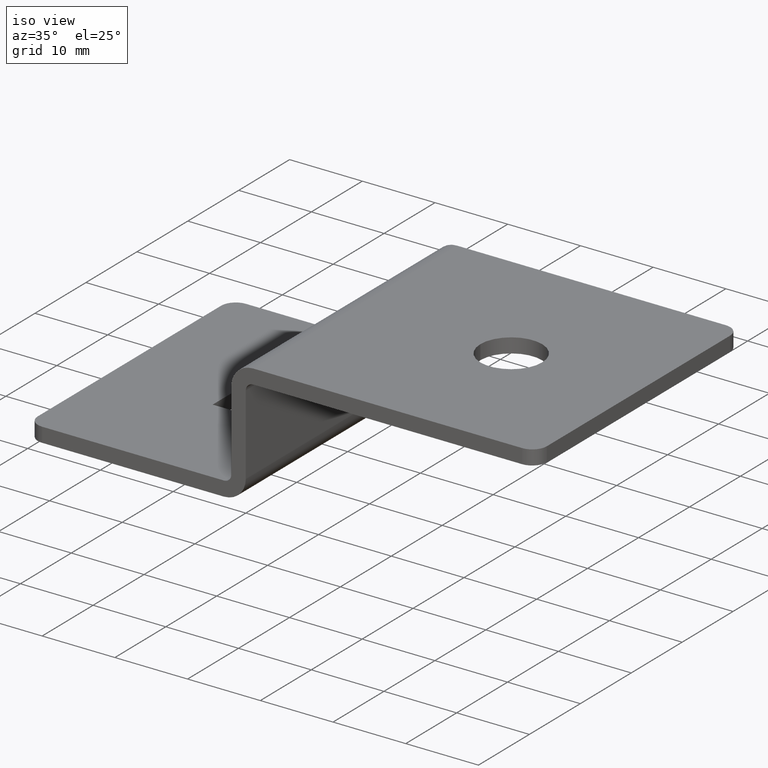
[diagram: clean part render]
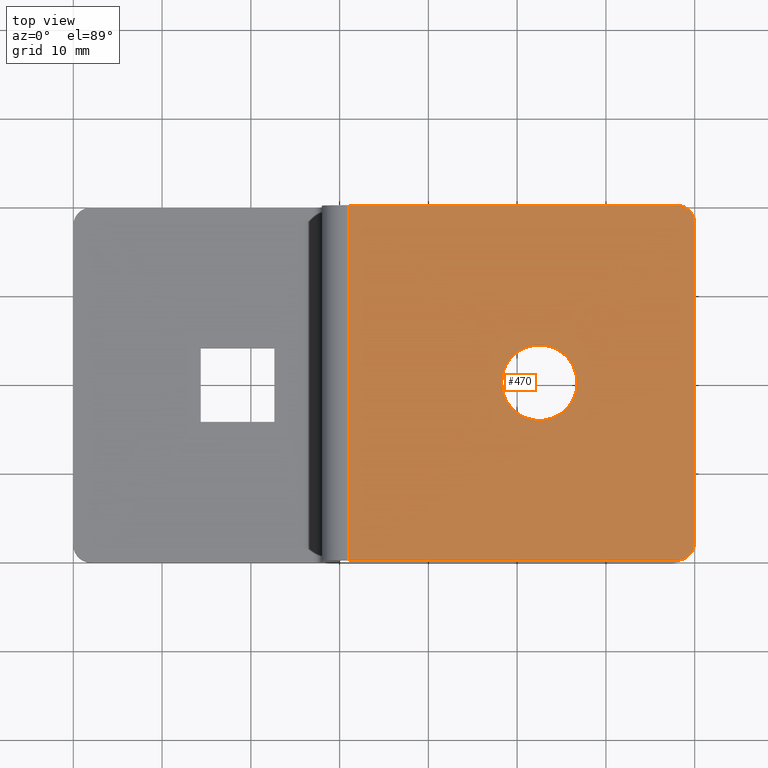
[diagram: tour spotlight — one face highlighted and labeled with its STEP entity id]
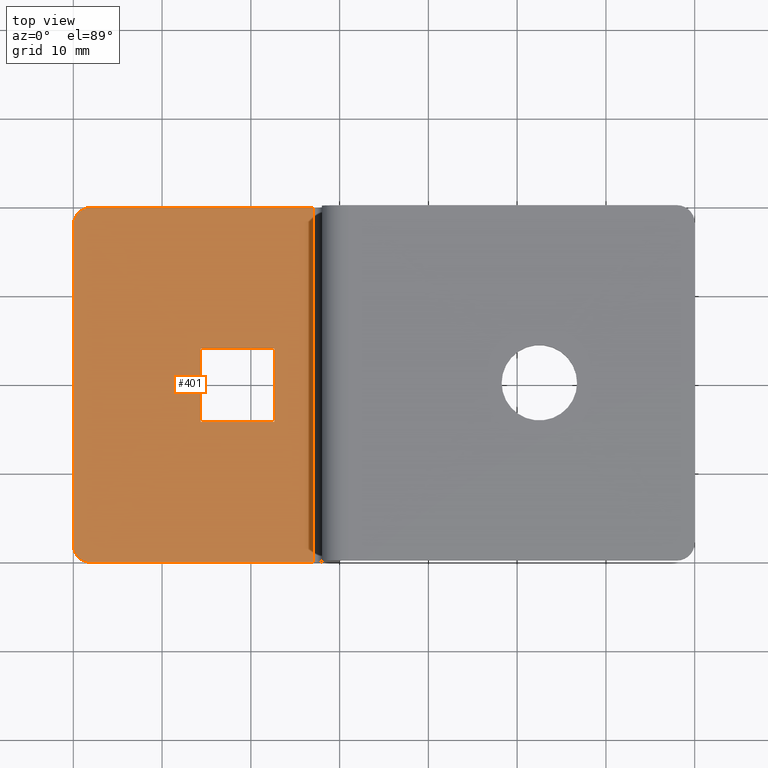
[diagram: tour spotlight — one face highlighted and labeled with its STEP entity id]
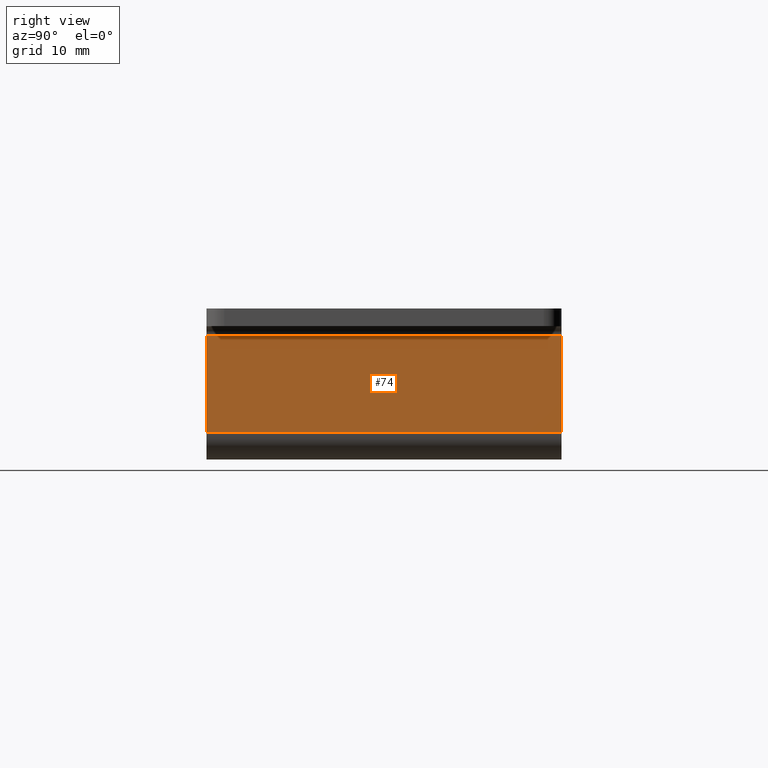
[diagram: tour spotlight — one face highlighted and labeled with its STEP entity id]
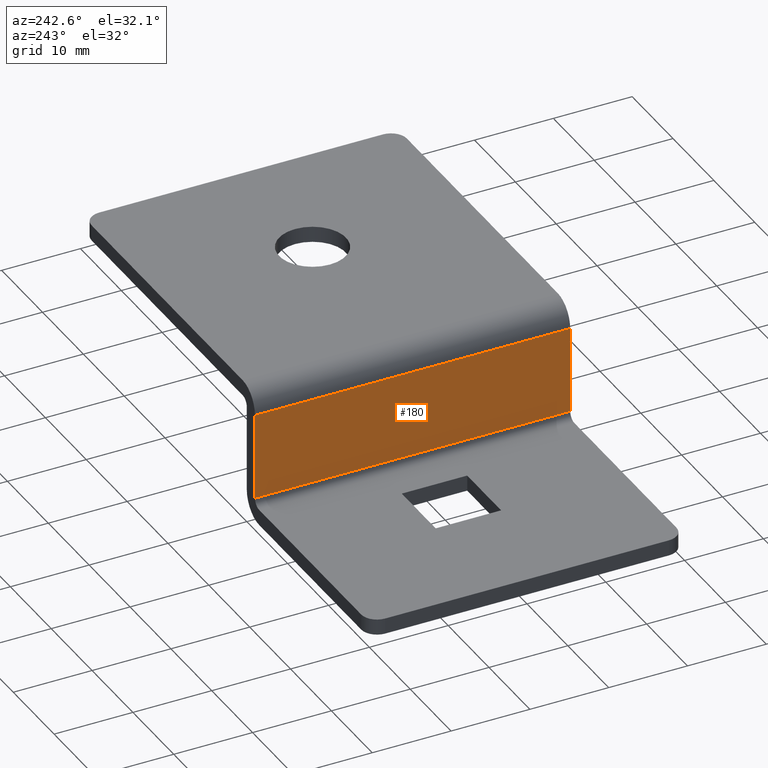
[diagram: tour spotlight — one face highlighted and labeled with its STEP entity id]
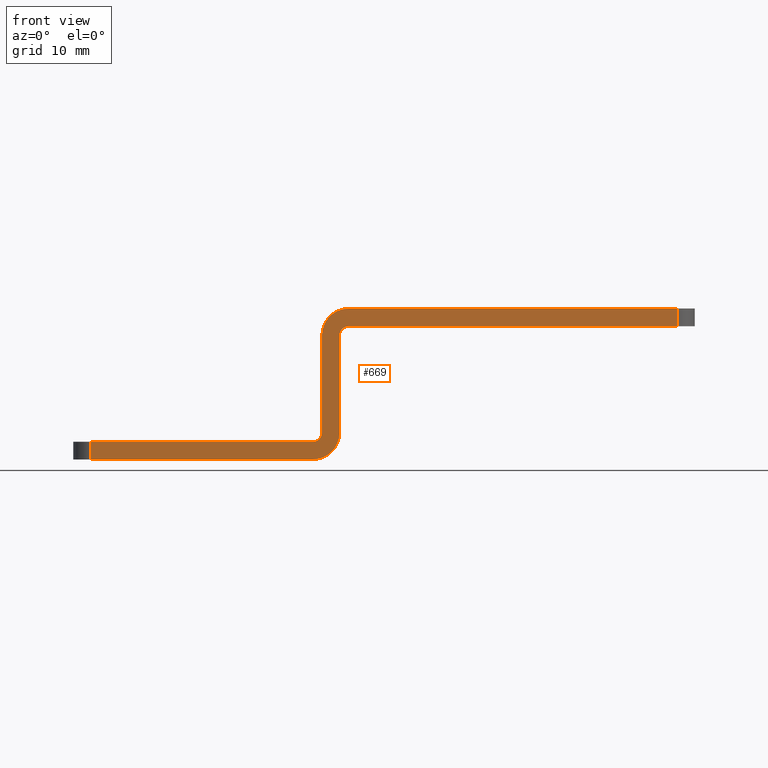
[diagram: tour spotlight — one face highlighted and labeled with its STEP entity id]
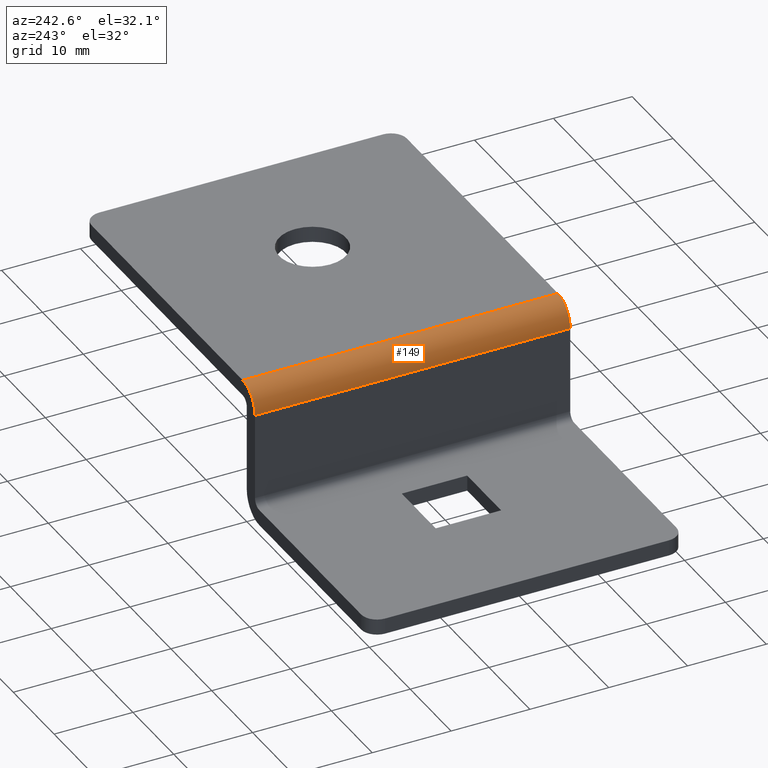
[diagram: tour spotlight — one face highlighted and labeled with its STEP entity id]
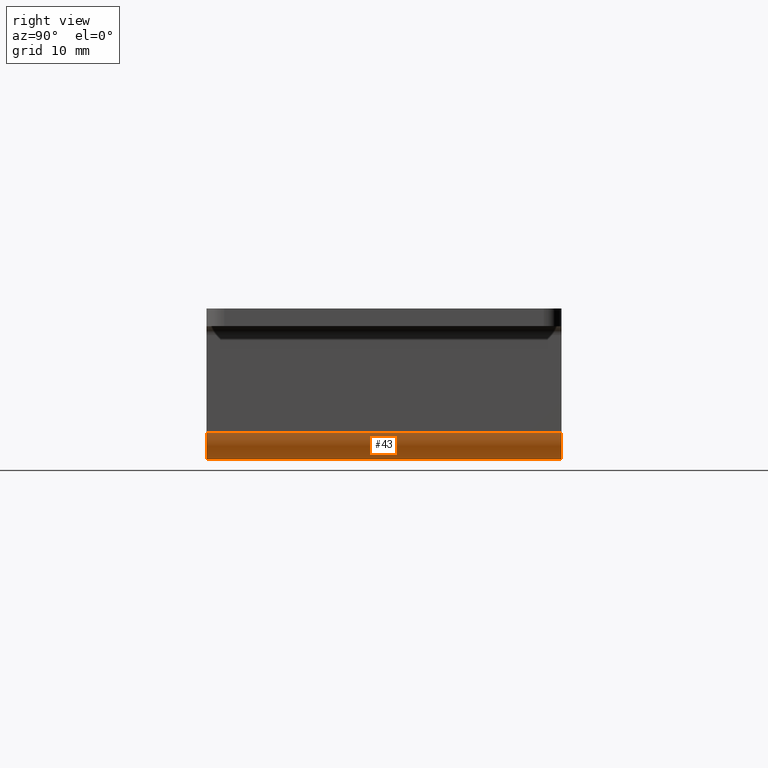
[diagram: tour spotlight — one face highlighted and labeled with its STEP entity id]
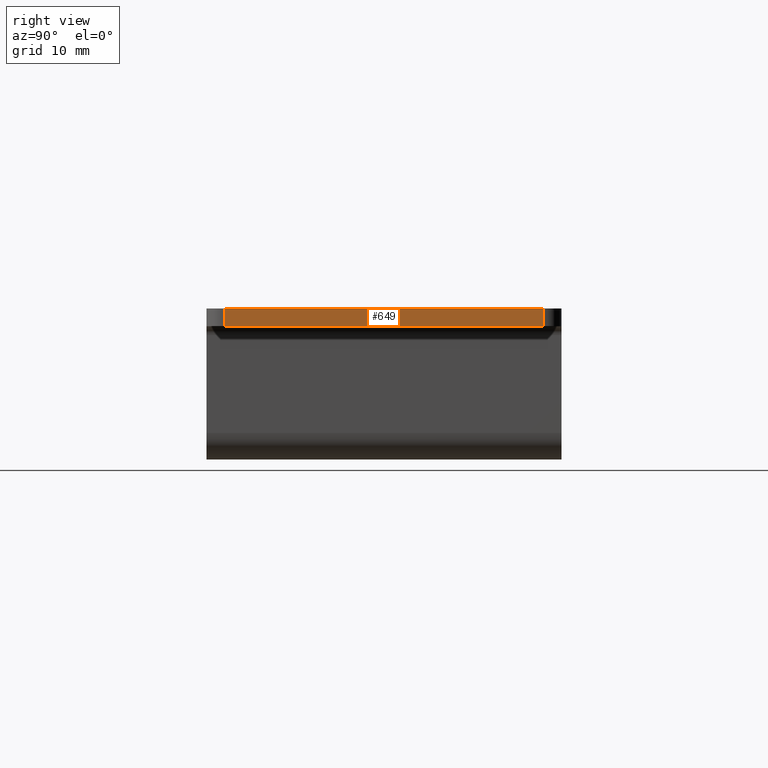
[diagram: tour spotlight — one face highlighted and labeled with its STEP entity id]
A machine part: a face-by-face anatomy tour. The part has 23 B-rep faces; the first image is the clean iso view, then the 8 largest visible faces are spotlighted one at a time (largest first), each with its STEP entity span.

Face 1 — top view, entity #470. In plain terms, the highlighted planar face has unit normal (0, 0, 1).
Definition (entity closure, byte-faithful):
#113=CARTESIAN_POINT('',(-38.999999999843510,19.999999999919964,-1.224647E-015));
#114=VERTEX_POINT('',#113);
#132=CARTESIAN_POINT('',(-38.999999999843510,-19.999999999919964,1.224647E-015));
#133=VERTEX_POINT('',#132);
#141=CARTESIAN_POINT('',(-38.999999999843510,19.999999999919964,-1.224647E-015));
#142=DIRECTION('',(0.0,-1.0,0.0));
#143=VECTOR('',#142,39.999999999839929);
#144=LINE('',#141,#143);
#145=EDGE_CURVE('',#114,#133,#144,.T.);
#402=CARTESIAN_POINT('',(0.0,19.999999999919964,-1.224647E-015));
#403=DIRECTION('',(0.0,0.0,1.0));
#404=DIRECTION('',(-1.0,0.0,0.0));
#405=AXIS2_PLACEMENT_3D('',#402,#403,#404);
#406=PLANE('',#405);
#407=CARTESIAN_POINT('',(-2.0,19.999999999919964,-1.224647E-015));
#408=VERTEX_POINT('',#407);
#409=CARTESIAN_POINT('',(-2.0,19.999999999919964,-1.224647E-015));
#410=DIRECTION('',(-1.0,0.0,0.0));
#411=VECTOR('',#410,36.999999999843510);
#412=LINE('',#409,#411);
#413=EDGE_CURVE('',#408,#114,#412,.T.);
#414=ORIENTED_EDGE('',*,*,#413,.T.);
#415=ORIENTED_EDGE('',*,*,#145,.T.);
#416=CARTESIAN_POINT('',(-2.0,-19.999999999919964,1.224647E-015));
#417=VERTEX_POINT('',#416);
#418=CARTESIAN_POINT('',(-2.0,-19.999999999919964,1.224647E-015));
#419=DIRECTION('',(-1.0,0.0,0.0));
#420=VECTOR('',#419,36.999999999843510);
#421=LINE('',#418,#420);
#422=EDGE_CURVE('',#417,#133,#421,.T.);
#423=ORIENTED_EDGE('',*,*,#422,.F.);
#424=CARTESIAN_POINT('',(0.0,-17.999999999919964,1.102182E-015));
#425=VERTEX_POINT('',#424);
#426=CARTESIAN_POINT('',(-2.0,-17.999999999919964,1.102182E-015));
#427=DIRECTION('',(0.0,-6.123234E-017,-1.0));
#428=DIRECTION('',(1.0,0.0,0.0));
#429=AXIS2_PLACEMENT_3D('',#426,#427,#428);
#430=CIRCLE('',#429,2.0);
#431=EDGE_CURVE('',#425,#417,#430,.T.);
#432=ORIENTED_EDGE('',*,*,#431,.F.);
#433=CARTESIAN_POINT('',(0.0,17.999999999919964,-1.102182E-015));
#434=VERTEX_POINT('',#433);
#435=CARTESIAN_POINT('',(0.0,17.999999999919964,-1.102182E-015));
#436=DIRECTION('',(0.0,-1.0,0.0));
#437=VECTOR('',#436,35.999999999839929);
#438=LINE('',#435,#437);
#439=EDGE_CURVE('',#434,#425,#438,.T.);
#440=ORIENTED_EDGE('',*,*,#439,.F.);
#441=CARTESIAN_POINT('',(-2.0,17.999999999919964,-1.102182E-015));
#442=DIRECTION('',(0.0,6.123234E-017,1.0));
#443=DIRECTION('',(1.0,0.0,0.0));
#444=AXIS2_PLACEMENT_3D('',#441,#442,#443);
#445=CIRCLE('',#444,2.0);
#446=EDGE_CURVE('',#434,#408,#445,.T.);
#447=ORIENTED_EDGE('',*,*,#446,.T.);
#448=EDGE_LOOP('',(#414,#415,#423,#432,#440,#447));
#449=FACE_OUTER_BOUND('',#448,.T.);
#450=CARTESIAN_POINT('',(-13.249999999946965,0.0,0.0));
#451=VERTEX_POINT('',#450);
#452=CARTESIAN_POINT('',(-21.749999999912973,0.0,0.0));
#453=VERTEX_POINT('',#452);
#454=CARTESIAN_POINT('',(-17.499999999929969,0.0,0.0));
#455=DIRECTION('',(0.0,6.123234E-017,1.0));
#456=DIRECTION('',(-1.0,0.0,0.0));
#457=AXIS2_PLACEMENT_3D('',#454,#455,#456);
#458=CIRCLE('',#457,4.249999999983004);
#459=EDGE_CURVE('',#451,#453,#458,.T.);
#460=ORIENTED_EDGE('',*,*,#459,.F.);
#461=CARTESIAN_POINT('',(-17.499999999929969,0.0,0.0));
#462=DIRECTION('',(0.0,6.123234E-017,1.0));
#463=DIRECTION('',(-1.0,0.0,0.0));
#464=AXIS2_PLACEMENT_3D('',#461,#462,#463);
#465=CIRCLE('',#464,4.249999999983004);
#466=EDGE_CURVE('',#453,#451,#465,.T.);
#467=ORIENTED_EDGE('',*,*,#466,.F.);
#468=EDGE_LOOP('',(#460,#467));
#469=FACE_BOUND('',#468,.T.);
#470=ADVANCED_FACE('',(#449,#469),#406,.T.);

Face 2 — top view, entity #401. In plain terms, the highlighted planar face has unit normal (0, 0, 1).
Definition (entity closure, byte-faithful):
#186=CARTESIAN_POINT('',(-42.999999999827878,19.999999999919964,-14.999999999939890));
#187=VERTEX_POINT('',#186);
#195=CARTESIAN_POINT('',(-42.999999999827878,-19.999999999919964,-14.999999999939886));
#196=VERTEX_POINT('',#195);
#197=CARTESIAN_POINT('',(-42.999999999827878,19.999999999919964,-14.999999999939890));
#198=DIRECTION('',(0.0,-1.0,0.0));
#199=VECTOR('',#198,39.999999999839929);
#200=LINE('',#197,#199);
#201=EDGE_CURVE('',#187,#196,#200,.T.);
#302=CARTESIAN_POINT('',(-69.999999999720060,17.999999999919964,-14.999999999939890));
#303=VERTEX_POINT('',#302);
#304=CARTESIAN_POINT('',(-67.999999999720060,19.999999999919964,-14.999999999939890));
#305=VERTEX_POINT('',#304);
#306=CARTESIAN_POINT('',(-67.999999999720060,17.999999999919964,-14.999999999939890));
#307=DIRECTION('',(0.0,-6.123234E-017,-1.0));
#308=DIRECTION('',(-1.0,0.0,0.0));
#309=AXIS2_PLACEMENT_3D('',#306,#307,#308);
#310=CIRCLE('',#309,2.0);
#311=EDGE_CURVE('',#303,#305,#310,.T.);
#329=CARTESIAN_POINT('',(-42.999999999827878,19.999999999919964,-14.999999999939890));
#330=DIRECTION('',(0.0,0.0,1.0));
#331=DIRECTION('',(-1.0,0.0,0.0));
#332=AXIS2_PLACEMENT_3D('',#329,#330,#331);
#333=PLANE('',#332);
#334=CARTESIAN_POINT('',(-42.999999999827878,19.999999999919964,-14.999999999939890));
#335=DIRECTION('',(-1.0,0.0,0.0));
#336=VECTOR('',#335,24.999999999892182);
#337=LINE('',#334,#336);
#338=EDGE_CURVE('',#187,#305,#337,.T.);
#339=ORIENTED_EDGE('',*,*,#338,.T.);
#340=ORIENTED_EDGE('',*,*,#311,.F.);
#341=CARTESIAN_POINT('',(-69.999999999720060,-17.999999999919964,-14.999999999939886));
#342=VERTEX_POINT('',#341);
#343=CARTESIAN_POINT('',(-69.999999999720060,17.999999999919964,-14.999999999939890));
#344=DIRECTION('',(0.0,-1.0,0.0));
#345=VECTOR('',#344,35.999999999839929);
#346=LINE('',#343,#345);
#347=EDGE_CURVE('',#303,#342,#346,.T.);
#348=ORIENTED_EDGE('',*,*,#347,.T.);
#349=CARTESIAN_POINT('',(-67.999999999720060,-19.999999999919964,-14.999999999939886));
#350=VERTEX_POINT('',#349);
#351=CARTESIAN_POINT('',(-67.999999999720060,-17.999999999919964,-14.999999999939886));
#352=DIRECTION('',(0.0,6.123234E-017,1.0));
#353=DIRECTION('',(-1.0,0.0,0.0));
#354=AXIS2_PLACEMENT_3D('',#351,#352,#353);
#355=CIRCLE('',#354,2.0);
#356=EDGE_CURVE('',#342,#350,#355,.T.);
#357=ORIENTED_EDGE('',*,*,#356,.T.);
#358=CARTESIAN_POINT('',(-42.999999999827878,-19.999999999919964,-14.999999999939886));
#359=DIRECTION('',(-1.0,0.0,0.0));
#360=VECTOR('',#359,24.999999999892182);
#361=LINE('',#358,#360);
#362=EDGE_CURVE('',#196,#350,#361,.T.);
#363=ORIENTED_EDGE('',*,*,#362,.F.);
#364=ORIENTED_EDGE('',*,*,#201,.F.);
#365=EDGE_LOOP('',(#339,#340,#348,#357,#363,#364));
#366=FACE_OUTER_BOUND('',#365,.T.);
#367=CARTESIAN_POINT('',(-55.649999999777322,4.146153846137167,-14.999999999939888));
#368=VERTEX_POINT('',#367);
#369=CARTESIAN_POINT('',(-47.349999999810507,4.146153846137167,-14.999999999939888));
#370=VERTEX_POINT('',#369);
#371=CARTESIAN_POINT('',(-55.649999999777322,4.146153846137167,-14.999999999939888));
#372=DIRECTION('',(1.0,0.0,0.0));
#373=VECTOR('',#372,8.299999999966815);
#374=LINE('',#371,#373);
#375=EDGE_CURVE('',#368,#370,#374,.T.);
#376=ORIENTED_EDGE('',*,*,#375,.T.);
#377=CARTESIAN_POINT('',(-47.349999999810507,-4.153846153829364,-14.999999999939888));
#378=VERTEX_POINT('',#377);
#379=CARTESIAN_POINT('',(-47.349999999810507,-4.153846153829364,-14.999999999939888));
#380=DIRECTION('',(0.0,1.0,0.0));
#381=VECTOR('',#380,8.299999999966531);
#382=LINE('',#379,#381);
#383=EDGE_CURVE('',#378,#370,#382,.T.);
#384=ORIENTED_EDGE('',*,*,#383,.F.);
#385=CARTESIAN_POINT('',(-55.649999999777322,-4.153846153829364,-14.999999999939888));
#386=VERTEX_POINT('',#385);
#387=CARTESIAN_POINT('',(-55.649999999777322,-4.153846153829364,-14.999999999939888));
#388=DIRECTION('',(1.0,0.0,0.0));
#389=VECTOR('',#388,8.299999999966815);
#390=LINE('',#387,#389);
#391=EDGE_CURVE('',#386,#378,#390,.T.);
#392=ORIENTED_EDGE('',*,*,#391,.F.);
#393=CARTESIAN_POINT('',(-55.649999999777322,4.146153846137167,-14.999999999939888));
#394=DIRECTION('',(0.0,-1.0,0.0));
#395=VECTOR('',#394,8.299999999966531);
#396=LINE('',#393,#395);
#397=EDGE_CURVE('',#368,#386,#396,.T.);
#398=ORIENTED_EDGE('',*,*,#397,.F.);
#399=EDGE_LOOP('',(#376,#384,#392,#398));
#400=FACE_BOUND('',#399,.T.);
#401=ADVANCED_FACE('',(#366,#400),#333,.T.);

Face 3 — right view, entity #74. In plain terms, the highlighted planar face has unit normal (1, 0, 0).
Definition (entity closure, byte-faithful):
#9=CARTESIAN_POINT('',(-39.999999999839872,19.999999999919964,-13.999999999951855));
#10=VERTEX_POINT('',#9);
#18=CARTESIAN_POINT('',(-39.999999999839872,-19.999999999919964,-13.999999999951852));
#19=VERTEX_POINT('',#18);
#20=CARTESIAN_POINT('',(-39.999999999839872,19.999999999919964,-13.999999999951855));
#21=DIRECTION('',(0.0,-1.0,0.0));
#22=VECTOR('',#21,39.999999999839929);
#23=LINE('',#20,#22);
#24=EDGE_CURVE('',#10,#19,#23,.T.);
#44=CARTESIAN_POINT('',(-39.999999999839872,19.999999999919964,-13.999999999951855));
#45=DIRECTION('',(1.0,0.0,0.0));
#46=DIRECTION('',(0.0,0.0,1.0));
#47=AXIS2_PLACEMENT_3D('',#44,#45,#46);
#48=PLANE('',#47);
#49=CARTESIAN_POINT('',(-39.999999999839872,19.999999999919964,-2.999999999996363));
#50=VERTEX_POINT('',#49);
#51=CARTESIAN_POINT('',(-39.999999999839872,19.999999999919964,-13.999999999951855));
#52=DIRECTION('',(0.0,0.0,1.0));
#53=VECTOR('',#52,10.999999999955477);
#54=LINE('',#51,#53);
#55=EDGE_CURVE('',#10,#50,#54,.T.);
#56=ORIENTED_EDGE('',*,*,#55,.T.);
#57=CARTESIAN_POINT('',(-39.999999999839872,-19.999999999919964,-2.999999999996361));
#58=VERTEX_POINT('',#57);
#59=CARTESIAN_POINT('',(-39.999999999839872,19.999999999919964,-2.999999999996363));
#60=DIRECTION('',(0.0,-1.0,0.0));
#61=VECTOR('',#60,39.999999999839929);
#62=LINE('',#59,#61);
#63=EDGE_CURVE('',#50,#58,#62,.T.);
#64=ORIENTED_EDGE('',*,*,#63,.T.);
#65=CARTESIAN_POINT('',(-39.999999999839872,-19.999999999919964,-13.999999999951852));
#66=DIRECTION('',(0.0,0.0,1.0));
#67=VECTOR('',#66,10.999999999955477);
#68=LINE('',#65,#67);
#69=EDGE_CURVE('',#19,#58,#68,.T.);
#70=ORIENTED_EDGE('',*,*,#69,.F.);
#71=ORIENTED_EDGE('',*,*,#24,.F.);
#72=EDGE_LOOP('',(#56,#64,#70,#71));
#73=FACE_OUTER_BOUND('',#72,.T.);
#74=ADVANCED_FACE('',(#73),#48,.T.);

Face 4 — auxiliary view, entity #180. In plain terms, the highlighted planar face has unit normal (-1, 0, 0).
Definition (entity closure, byte-faithful):
#115=CARTESIAN_POINT('',(-41.999999999839872,19.999999999919964,-2.999999999996378));
#116=VERTEX_POINT('',#115);
#124=CARTESIAN_POINT('',(-41.999999999839872,-19.999999999919964,-2.999999999996375));
#125=VERTEX_POINT('',#124);
#126=CARTESIAN_POINT('',(-41.999999999839872,19.999999999919964,-2.999999999996378));
#127=DIRECTION('',(0.0,-1.0,0.0));
#128=VECTOR('',#127,39.999999999839929);
#129=LINE('',#126,#128);
#130=EDGE_CURVE('',#116,#125,#129,.T.);
#150=CARTESIAN_POINT('',(-41.999999999839872,19.999999999919964,-2.999999999996378));
#151=DIRECTION('',(-1.0,0.0,0.0));
#152=DIRECTION('',(0.0,0.0,-1.0));
#153=AXIS2_PLACEMENT_3D('',#150,#151,#152);
#154=PLANE('',#153);
#155=CARTESIAN_POINT('',(-41.999999999839872,19.999999999919964,-13.999999999951855));
#156=VERTEX_POINT('',#155);
#157=CARTESIAN_POINT('',(-41.999999999839872,19.999999999919964,-2.999999999996378));
#158=DIRECTION('',(0.0,0.0,-1.0));
#159=VECTOR('',#158,10.999999999955477);
#160=LINE('',#157,#159);
#161=EDGE_CURVE('',#116,#156,#160,.T.);
#162=ORIENTED_EDGE('',*,*,#161,.T.);
#163=CARTESIAN_POINT('',(-41.999999999839872,-19.999999999919964,-13.999999999951852));
#164=VERTEX_POINT('',#163);
#165=CARTESIAN_POINT('',(-41.999999999839872,19.999999999919964,-13.999999999951855));
#166=DIRECTION('',(0.0,-1.0,0.0));
#167=VECTOR('',#166,39.999999999839929);
#168=LINE('',#165,#167);
#169=EDGE_CURVE('',#156,#164,#168,.T.);
#170=ORIENTED_EDGE('',*,*,#169,.T.);
#171=CARTESIAN_POINT('',(-41.999999999839872,-19.999999999919964,-2.999999999996375));
#172=DIRECTION('',(0.0,0.0,-1.0));
#173=VECTOR('',#172,10.999999999955477);
#174=LINE('',#171,#173);
#175=EDGE_CURVE('',#125,#164,#174,.T.);
#176=ORIENTED_EDGE('',*,*,#175,.F.);
#177=ORIENTED_EDGE('',*,*,#130,.F.);
#178=EDGE_LOOP('',(#162,#170,#176,#177));
#179=FACE_OUTER_BOUND('',#178,.T.);
#180=ADVANCED_FACE('',(#179),#154,.T.);

Face 5 — front view, entity #669. In plain terms, the highlighted planar face has unit normal (0, -1, 0).
Definition (entity closure, byte-faithful):
#18=CARTESIAN_POINT('',(-39.999999999839872,-19.999999999919964,-13.999999999951852));
#19=VERTEX_POINT('',#18);
#26=CARTESIAN_POINT('',(-42.999999999827907,-19.999999999919964,-16.999999999939888));
#27=VERTEX_POINT('',#26);
#28=CARTESIAN_POINT('',(-42.999999999827907,-19.999999999919964,-13.999999999951852));
#29=DIRECTION('',(0.0,-1.0,6.123234E-017));
#30=DIRECTION('',(0.0,-6.123234E-017,-1.0));
#31=AXIS2_PLACEMENT_3D('',#28,#29,#30);
#32=CIRCLE('',#31,2.999999999988035);
#33=EDGE_CURVE('',#27,#19,#32,.T.);
#57=CARTESIAN_POINT('',(-39.999999999839872,-19.999999999919964,-2.999999999996361));
#58=VERTEX_POINT('',#57);
#65=CARTESIAN_POINT('',(-39.999999999839872,-19.999999999919964,-13.999999999951852));
#66=DIRECTION('',(0.0,0.0,1.0));
#67=VECTOR('',#66,10.999999999955477);
#68=LINE('',#65,#67);
#69=EDGE_CURVE('',#19,#58,#68,.T.);
#89=CARTESIAN_POINT('',(-38.999999999843510,-19.999999999919964,-1.999999999999999));
#90=VERTEX_POINT('',#89);
#97=CARTESIAN_POINT('',(-38.999999999843510,-19.999999999919964,-2.999999999996361));
#98=DIRECTION('',(0.0,1.0,-6.123234E-017));
#99=DIRECTION('',(1.0,0.0,0.0));
#100=AXIS2_PLACEMENT_3D('',#97,#98,#99);
#101=CIRCLE('',#100,0.999999999996366);
#102=EDGE_CURVE('',#58,#90,#101,.T.);
#124=CARTESIAN_POINT('',(-41.999999999839872,-19.999999999919964,-2.999999999996375));
#125=VERTEX_POINT('',#124);
#132=CARTESIAN_POINT('',(-38.999999999843510,-19.999999999919964,1.224647E-015));
#133=VERTEX_POINT('',#132);
#134=CARTESIAN_POINT('',(-38.999999999843510,-19.999999999919964,-2.999999999996361));
#135=DIRECTION('',(0.0,-1.0,6.123234E-017));
#136=DIRECTION('',(1.0,0.0,0.0));
#137=AXIS2_PLACEMENT_3D('',#134,#135,#136);
#138=CIRCLE('',#137,2.999999999996366);
#139=EDGE_CURVE('',#133,#125,#138,.T.);
#163=CARTESIAN_POINT('',(-41.999999999839872,-19.999999999919964,-13.999999999951852));
#164=VERTEX_POINT('',#163);
#171=CARTESIAN_POINT('',(-41.999999999839872,-19.999999999919964,-2.999999999996375));
#172=DIRECTION('',(0.0,0.0,-1.0));
#173=VECTOR('',#172,10.999999999955477);
#174=LINE('',#171,#173);
#175=EDGE_CURVE('',#125,#164,#174,.T.);
#195=CARTESIAN_POINT('',(-42.999999999827878,-19.999999999919964,-14.999999999939886));
#196=VERTEX_POINT('',#195);
#203=CARTESIAN_POINT('',(-42.999999999827907,-19.999999999919964,-13.999999999951852));
#204=DIRECTION('',(0.0,1.0,-6.123234E-017));
#205=DIRECTION('',(0.0,-6.123234E-017,-1.0));
#206=AXIS2_PLACEMENT_3D('',#203,#204,#205);
#207=CIRCLE('',#206,0.999999999988034);
#208=EDGE_CURVE('',#164,#196,#207,.T.);
#228=CARTESIAN_POINT('',(-67.999999999720060,-19.999999999919964,-16.999999999939888));
#229=VERTEX_POINT('',#228);
#230=CARTESIAN_POINT('',(-67.999999999720060,-19.999999999919964,-16.999999999939888));
#231=DIRECTION('',(1.0,0.0,0.0));
#232=VECTOR('',#231,24.999999999892182);
#233=LINE('',#230,#232);
#234=EDGE_CURVE('',#229,#27,#233,.T.);
#349=CARTESIAN_POINT('',(-67.999999999720060,-19.999999999919964,-14.999999999939886));
#350=VERTEX_POINT('',#349);
#358=CARTESIAN_POINT('',(-42.999999999827878,-19.999999999919964,-14.999999999939886));
#359=DIRECTION('',(-1.0,0.0,0.0));
#360=VECTOR('',#359,24.999999999892182);
#361=LINE('',#358,#360);
#362=EDGE_CURVE('',#196,#350,#361,.T.);
#416=CARTESIAN_POINT('',(-2.0,-19.999999999919964,1.224647E-015));
#417=VERTEX_POINT('',#416);
#418=CARTESIAN_POINT('',(-2.0,-19.999999999919964,1.224647E-015));
#419=DIRECTION('',(-1.0,0.0,0.0));
#420=VECTOR('',#419,36.999999999843510);
#421=LINE('',#418,#420);
#422=EDGE_CURVE('',#417,#133,#421,.T.);
#523=CARTESIAN_POINT('',(-2.0,-19.999999999919964,-1.999999999999999));
#524=VERTEX_POINT('',#523);
#532=CARTESIAN_POINT('',(-38.999999999843510,-19.999999999919964,-1.999999999999999));
#533=DIRECTION('',(1.0,0.0,0.0));
#534=VECTOR('',#533,36.999999999843510);
#535=LINE('',#532,#534);
#536=EDGE_CURVE('',#90,#524,#535,.T.);
#574=CARTESIAN_POINT('',(-2.0,-19.999999999919964,-1.999999999999999));
#575=DIRECTION('',(0.0,0.0,1.0));
#576=VECTOR('',#575,2.0);
#577=LINE('',#574,#576);
#578=EDGE_CURVE('',#524,#417,#577,.T.);
#596=CARTESIAN_POINT('',(-67.999999999720060,-19.999999999919964,-14.999999999939886));
#597=DIRECTION('',(0.0,0.0,-1.0));
#598=VECTOR('',#597,2.000000000000002);
#599=LINE('',#596,#598);
#600=EDGE_CURVE('',#350,#229,#599,.T.);
#650=CARTESIAN_POINT('',(-77.000004724124679,-19.999999999919964,1.700004724583808));
#651=DIRECTION('',(0.0,-1.0,0.0));
#652=DIRECTION('',(0.0,0.0,-1.0));
#653=AXIS2_PLACEMENT_3D('',#650,#651,#652);
#654=PLANE('',#653);
#655=ORIENTED_EDGE('',*,*,#33,.T.);
#656=ORIENTED_EDGE('',*,*,#69,.T.);
#657=ORIENTED_EDGE('',*,*,#102,.T.);
#658=ORIENTED_EDGE('',*,*,#536,.T.);
#659=ORIENTED_EDGE('',*,*,#578,.T.);
#660=ORIENTED_EDGE('',*,*,#422,.T.);
#661=ORIENTED_EDGE('',*,*,#139,.T.);
#662=ORIENTED_EDGE('',*,*,#175,.T.);
#663=ORIENTED_EDGE('',*,*,#208,.T.);
#664=ORIENTED_EDGE('',*,*,#362,.T.);
#665=ORIENTED_EDGE('',*,*,#600,.T.);
#666=ORIENTED_EDGE('',*,*,#234,.T.);
#667=EDGE_LOOP('',(#655,#656,#657,#658,#659,#660,#661,#662,#663,#664,#665,#666));
#668=FACE_OUTER_BOUND('',#667,.T.);
#669=ADVANCED_FACE('',(#668),#654,.T.);

Face 6 — auxiliary view, entity #149. In plain terms, the highlighted cylindrical surface (edge-blend (fillet) strip) has radius 3 mm, axis along (0, -1, 0).
Definition (entity closure, byte-faithful):
#108=CARTESIAN_POINT('',(-38.999999999843510,19.999999999919964,-2.999999999996363));
#109=DIRECTION('',(0.0,-1.0,6.123234E-017));
#110=DIRECTION('',(1.0,0.0,0.0));
#111=AXIS2_PLACEMENT_3D('',#108,#109,#110);
#112=CYLINDRICAL_SURFACE('',#111,2.999999999996366);
#113=CARTESIAN_POINT('',(-38.999999999843510,19.999999999919964,-1.224647E-015));
#114=VERTEX_POINT('',#113);
#115=CARTESIAN_POINT('',(-41.999999999839872,19.999999999919964,-2.999999999996378));
#116=VERTEX_POINT('',#115);
#117=CARTESIAN_POINT('',(-38.999999999843510,19.999999999919964,-2.999999999996363));
#118=DIRECTION('',(0.0,-1.0,6.123234E-017));
#119=DIRECTION('',(1.0,0.0,0.0));
#120=AXIS2_PLACEMENT_3D('',#117,#118,#119);
#121=CIRCLE('',#120,2.999999999996366);
#122=EDGE_CURVE('',#114,#116,#121,.T.);
#123=ORIENTED_EDGE('',*,*,#122,.T.);
#124=CARTESIAN_POINT('',(-41.999999999839872,-19.999999999919964,-2.999999999996375));
#125=VERTEX_POINT('',#124);
#126=CARTESIAN_POINT('',(-41.999999999839872,19.999999999919964,-2.999999999996378));
#127=DIRECTION('',(0.0,-1.0,0.0));
#128=VECTOR('',#127,39.999999999839929);
#129=LINE('',#126,#128);
#130=EDGE_CURVE('',#116,#125,#129,.T.);
#131=ORIENTED_EDGE('',*,*,#130,.T.);
#132=CARTESIAN_POINT('',(-38.999999999843510,-19.999999999919964,1.224647E-015));
#133=VERTEX_POINT('',#132);
#134=CARTESIAN_POINT('',(-38.999999999843510,-19.999999999919964,-2.999999999996361));
#135=DIRECTION('',(0.0,-1.0,6.123234E-017));
#136=DIRECTION('',(1.0,0.0,0.0));
#137=AXIS2_PLACEMENT_3D('',#134,#135,#136);
#138=CIRCLE('',#137,2.999999999996366);
#139=EDGE_CURVE('',#133,#125,#138,.T.);
#140=ORIENTED_EDGE('',*,*,#139,.F.);
#141=CARTESIAN_POINT('',(-38.999999999843510,19.999999999919964,-1.224647E-015));
#142=DIRECTION('',(0.0,-1.0,0.0));
#143=VECTOR('',#142,39.999999999839929);
#144=LINE('',#141,#143);
#145=EDGE_CURVE('',#114,#133,#144,.T.);
#146=ORIENTED_EDGE('',*,*,#145,.F.);
#147=EDGE_LOOP('',(#123,#131,#140,#146));
#148=FACE_OUTER_BOUND('',#147,.T.);
#149=ADVANCED_FACE('',(#148),#112,.T.);

Face 7 — right view, entity #43. In plain terms, the highlighted cylindrical surface (edge-blend (fillet) strip) has radius 3 mm, axis along (0, -1, 0).
Definition (entity closure, byte-faithful):
#2=CARTESIAN_POINT('',(-42.999999999827907,19.999999999919964,-13.999999999951855));
#3=DIRECTION('',(0.0,-1.0,6.123234E-017));
#4=DIRECTION('',(0.0,-6.123234E-017,-1.0));
#5=AXIS2_PLACEMENT_3D('',#2,#3,#4);
#6=CYLINDRICAL_SURFACE('',#5,2.999999999988035);
#7=CARTESIAN_POINT('',(-42.999999999827907,19.999999999919964,-16.999999999939888));
#8=VERTEX_POINT('',#7);
#9=CARTESIAN_POINT('',(-39.999999999839872,19.999999999919964,-13.999999999951855));
#10=VERTEX_POINT('',#9);
#11=CARTESIAN_POINT('',(-42.999999999827907,19.999999999919964,-13.999999999951855));
#12=DIRECTION('',(0.0,-1.0,6.123234E-017));
#13=DIRECTION('',(0.0,-6.123234E-017,-1.0));
#14=AXIS2_PLACEMENT_3D('',#11,#12,#13);
#15=CIRCLE('',#14,2.999999999988035);
#16=EDGE_CURVE('',#8,#10,#15,.T.);
#17=ORIENTED_EDGE('',*,*,#16,.T.);
#18=CARTESIAN_POINT('',(-39.999999999839872,-19.999999999919964,-13.999999999951852));
#19=VERTEX_POINT('',#18);
#20=CARTESIAN_POINT('',(-39.999999999839872,19.999999999919964,-13.999999999951855));
#21=DIRECTION('',(0.0,-1.0,0.0));
#22=VECTOR('',#21,39.999999999839929);
#23=LINE('',#20,#22);
#24=EDGE_CURVE('',#10,#19,#23,.T.);
#25=ORIENTED_EDGE('',*,*,#24,.T.);
#26=CARTESIAN_POINT('',(-42.999999999827907,-19.999999999919964,-16.999999999939888));
#27=VERTEX_POINT('',#26);
#28=CARTESIAN_POINT('',(-42.999999999827907,-19.999999999919964,-13.999999999951852));
#29=DIRECTION('',(0.0,-1.0,6.123234E-017));
#30=DIRECTION('',(0.0,-6.123234E-017,-1.0));
#31=AXIS2_PLACEMENT_3D('',#28,#29,#30);
#32=CIRCLE('',#31,2.999999999988035);
#33=EDGE_CURVE('',#27,#19,#32,.T.);
#34=ORIENTED_EDGE('',*,*,#33,.F.);
#35=CARTESIAN_POINT('',(-42.999999999827907,19.999999999919964,-16.999999999939888));
#36=DIRECTION('',(0.0,-1.0,0.0));
#37=VECTOR('',#36,39.999999999839929);
#38=LINE('',#35,#37);
#39=EDGE_CURVE('',#8,#27,#38,.T.);
#40=ORIENTED_EDGE('',*,*,#39,.F.);
#41=EDGE_LOOP('',(#17,#25,#34,#40));
#42=FACE_OUTER_BOUND('',#41,.T.);
#43=ADVANCED_FACE('',(#42),#6,.T.);

Face 8 — right view, entity #649. In plain terms, the highlighted planar face has unit normal (1, 0, 0).
Definition (entity closure, byte-faithful):
#424=CARTESIAN_POINT('',(0.0,-17.999999999919964,1.102182E-015));
#425=VERTEX_POINT('',#424);
#433=CARTESIAN_POINT('',(0.0,17.999999999919964,-1.102182E-015));
#434=VERTEX_POINT('',#433);
#435=CARTESIAN_POINT('',(0.0,17.999999999919964,-1.102182E-015));
#436=DIRECTION('',(0.0,-1.0,0.0));
#437=VECTOR('',#436,35.999999999839929);
#438=LINE('',#435,#437);
#439=EDGE_CURVE('',#434,#425,#438,.T.);
#476=CARTESIAN_POINT('',(0.0,17.999999999919964,-2.000000000000001));
#477=VERTEX_POINT('',#476);
#494=CARTESIAN_POINT('',(0.0,17.999999999919964,-2.000000000000001));
#495=DIRECTION('',(0.0,0.0,1.0));
#496=VECTOR('',#495,2.0);
#497=LINE('',#494,#496);
#498=EDGE_CURVE('',#477,#434,#497,.T.);
#515=CARTESIAN_POINT('',(0.0,-17.999999999919964,-1.999999999999999));
#516=VERTEX_POINT('',#515);
#517=CARTESIAN_POINT('',(0.0,17.999999999919964,-2.000000000000001));
#518=DIRECTION('',(0.0,-1.0,0.0));
#519=VECTOR('',#518,35.999999999839929);
#520=LINE('',#517,#519);
#521=EDGE_CURVE('',#477,#516,#520,.T.);
#567=CARTESIAN_POINT('',(0.0,-17.999999999919964,-1.999999999999999));
#568=DIRECTION('',(0.0,0.0,1.0));
#569=VECTOR('',#568,2.0);
#570=LINE('',#567,#569);
#571=EDGE_CURVE('',#516,#425,#570,.T.);
#638=CARTESIAN_POINT('',(0.0,19.999999999919964,-2.000000000000001));
#639=DIRECTION('',(1.0,0.0,0.0));
#640=DIRECTION('',(0.0,0.0,1.0));
#641=AXIS2_PLACEMENT_3D('',#638,#639,#640);
#642=PLANE('',#641);
#643=ORIENTED_EDGE('',*,*,#521,.F.);
#644=ORIENTED_EDGE('',*,*,#498,.T.);
#645=ORIENTED_EDGE('',*,*,#439,.T.);
#646=ORIENTED_EDGE('',*,*,#571,.F.);
#647=EDGE_LOOP('',(#643,#644,#645,#646));
#648=FACE_OUTER_BOUND('',#647,.T.);
#649=ADVANCED_FACE('',(#648),#642,.T.);